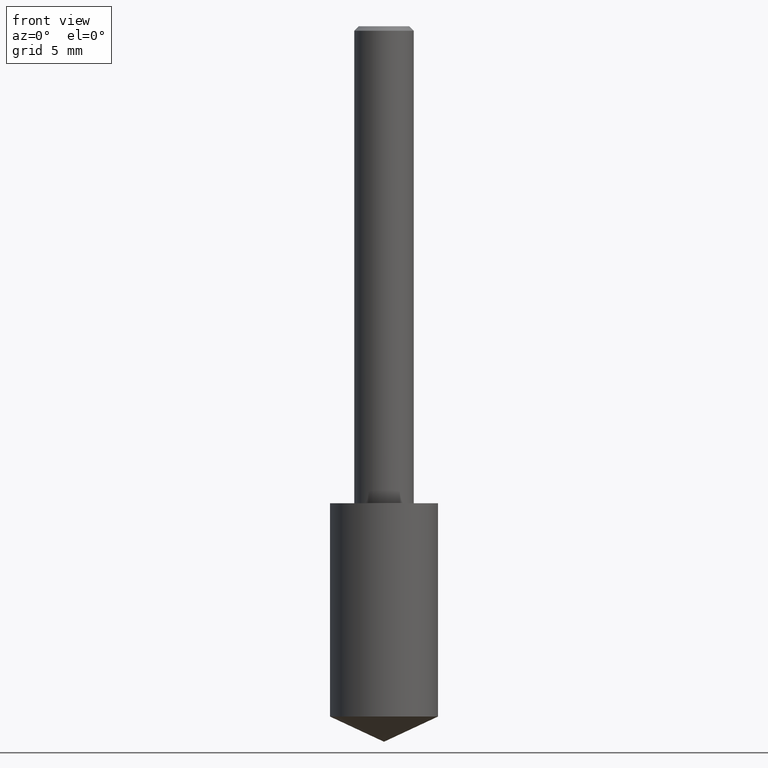
[diagram: clean part render]
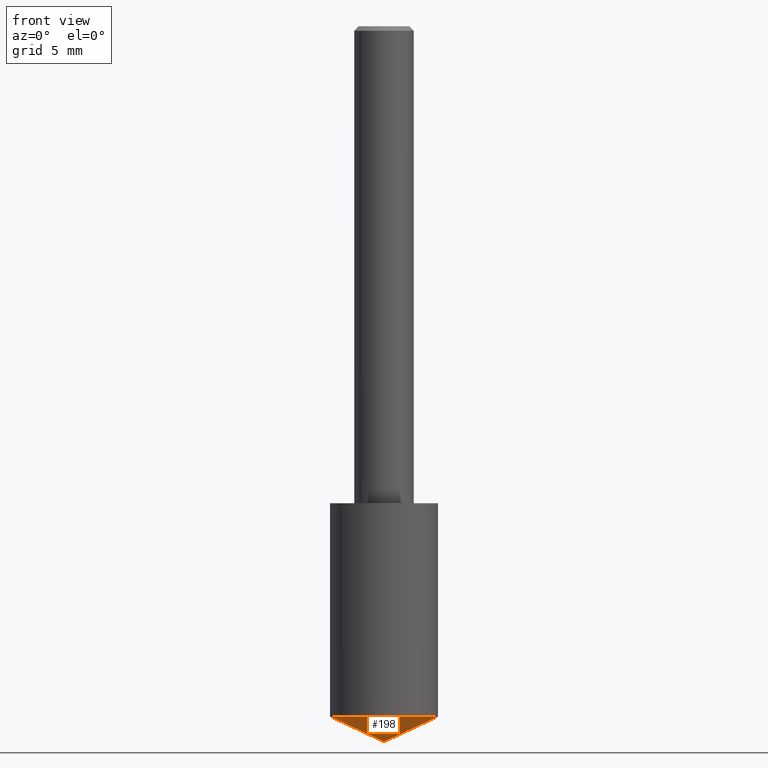
[diagram: same view with one face highlighted and labeled with its STEP entity id]
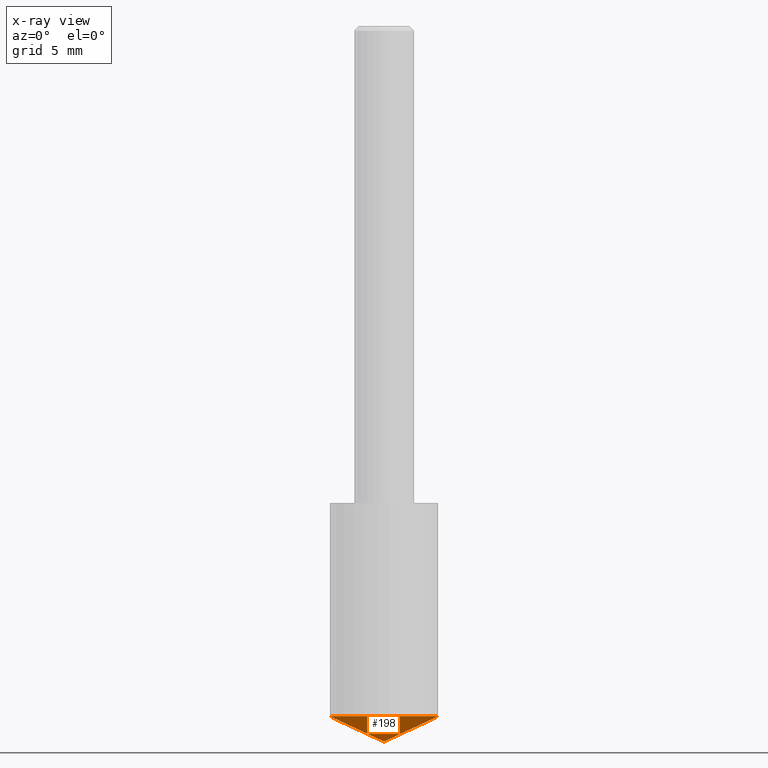
[diagram: x-ray of the same camera — body ghosted, the highlighted face saturated]
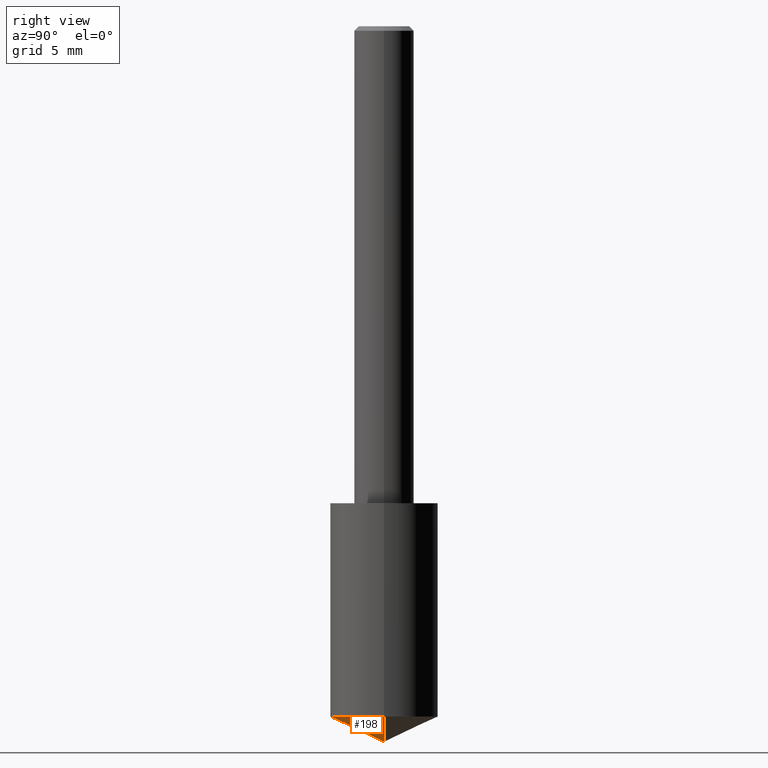
[diagram: same view with one face highlighted and labeled with its STEP entity id]
A machine part, front view. The second image highlights one B-rep face of the part: STEP entity #198.
The next image is the same camera in x-ray: the body ghosted, the highlighted face saturated — about 0% of this face is hidden behind the body in this view.
A second angle (right view) of the same face is appended — the face is thin or edge-on in the first view.
In plain terms, the highlighted conical surface has half-angle 65 deg.
Its self-contained STEP definition (entity closure, byte-faithful):
#7 = CARTESIAN_POINT ( 'NONE',  ( -9.261009624683002666E-28, 1.322226732217803884E-13, 37.87007874015748143 ) ) ;
#30 = DIRECTION ( 'NONE',  ( -2.445468806185136597E-29, 3.491481338843145583E-15, 1.000000000000000000 ) ) ;
#31 = CARTESIAN_POINT ( 'NONE',  ( 3.668203209277704895E-29, -5.237222008264718177E-15, -1.500000000000000222 ) ) ;
#33 = LINE ( 'NONE', #31, #329 ) ;
#35 = DIRECTION ( 'NONE',  ( 0.9063077870366507138, -4.853149677051390623E-15, 0.4226182617406978315 ) ) ;
#36 = CARTESIAN_POINT ( 'NONE',  ( 3.668203209277704895E-29, -5.237222008264718177E-15, -1.500000000000000222 ) ) ;
#39 = CONICAL_SURFACE ( 'NONE', #256, 84.42940631927434936, 1.134464013796316006 ) ;
#43 = VERTEX_POINT ( 'NONE', #310 ) ;
#59 = EDGE_CURVE ( 'NONE', #43, #307, #33, .T. ) ;
#84 = CIRCLE ( 'NONE', #234, 0.1131999999999999812 ) ;
#95 = VERTEX_POINT ( 'NONE', #109 ) ;
#108 = CARTESIAN_POINT ( 'NONE',  ( 3.539116627083612931E-29, -5.052920580380713708E-15, -1.447213973096854511 ) ) ;
#109 = CARTESIAN_POINT ( 'NONE',  ( 0.1132000000000000089, -5.843391955494798923E-15, -1.447213973096854511 ) ) ;
#110 = DIRECTION ( 'NONE',  ( 1.000000000000000000, -6.982962677686269077E-15, 0.000000000000000000 ) ) ;
#161 = ORIENTED_EDGE ( 'NONE', *, *, #173, .F. ) ;
#170 = LINE ( 'NONE', #36, #268 ) ;
#173 = EDGE_CURVE ( 'NONE', #307, #95, #84, .T. ) ;
#182 = EDGE_CURVE ( 'NONE', #43, #95, #170, .T. ) ;
#198 = ADVANCED_FACE ( 'NONE', ( #248 ), #39, .T. ) ;
#234 = AXIS2_PLACEMENT_3D ( 'NONE', #108, #30, #110 ) ;
#248 = FACE_OUTER_BOUND ( 'NONE', #306, .T. ) ;
#256 = AXIS2_PLACEMENT_3D ( 'NONE', #7, #257, #300 ) ;
#257 = DIRECTION ( 'NONE',  ( -2.445468806185136597E-29, 3.491481338843145583E-15, 1.000000000000000000 ) ) ;
#266 = ORIENTED_EDGE ( 'NONE', *, *, #182, .T. ) ;
#268 = VECTOR ( 'NONE', #35, 39.37007874015748143 ) ;
#281 = CARTESIAN_POINT ( 'NONE',  ( -0.1132000000000000089, -4.248586203500279741E-15, -1.447213973096854511 ) ) ;
#295 = DIRECTION ( 'NONE',  ( -0.9063077870366507138, 7.915267918739014631E-15, 0.4226182617406978315 ) ) ;
#300 = DIRECTION ( 'NONE',  ( 1.000000000000000000, -6.982962677686266711E-15, 0.000000000000000000 ) ) ;
#306 = EDGE_LOOP ( 'NONE', ( #313, #266, #161 ) ) ;
#307 = VERTEX_POINT ( 'NONE', #281 ) ;
#310 = CARTESIAN_POINT ( 'NONE',  ( 3.668203209277704895E-29, -5.237222008264718177E-15, -1.500000000000000222 ) ) ;
#313 = ORIENTED_EDGE ( 'NONE', *, *, #59, .F. ) ;
#329 = VECTOR ( 'NONE', #295, 39.37007874015748143 ) ;